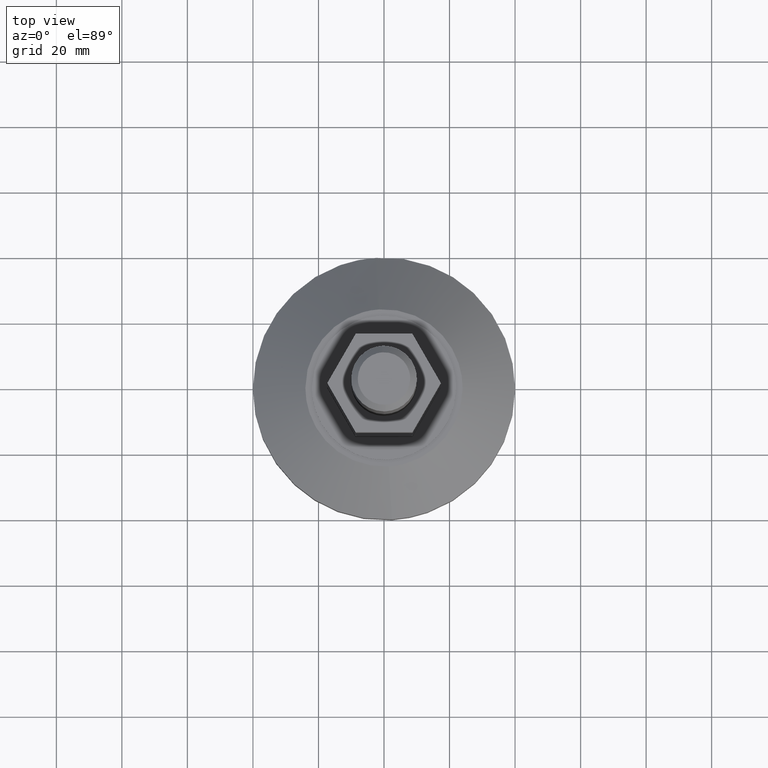
[diagram: clean part render]
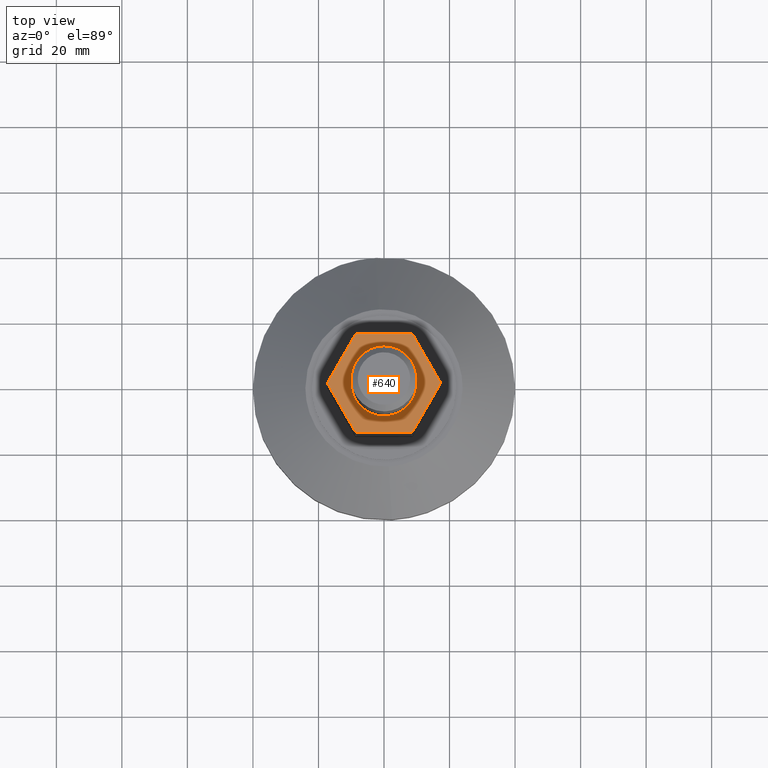
[diagram: same view with one face highlighted and labeled with its STEP entity id]
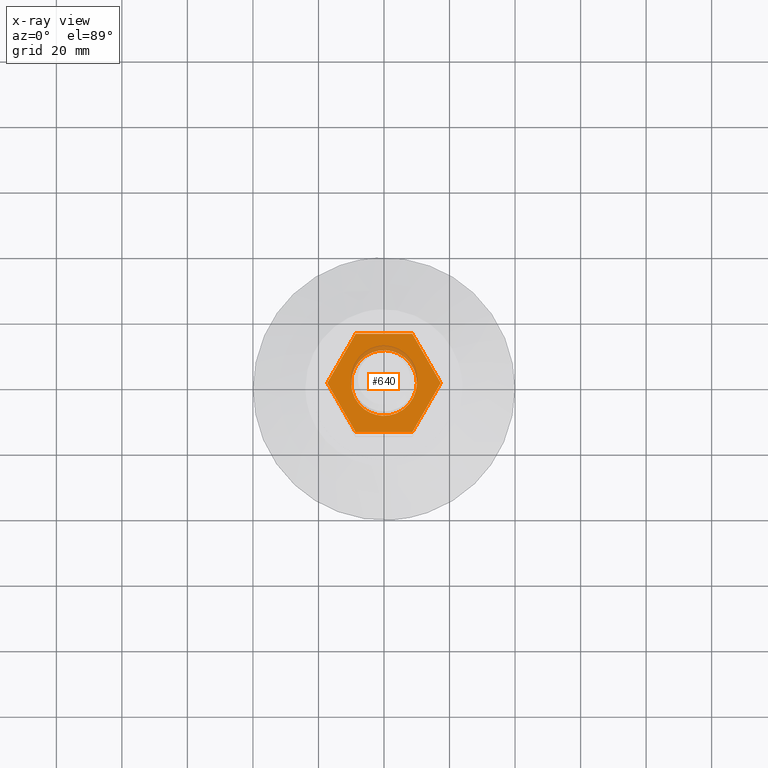
[diagram: x-ray of the same camera — body ghosted, the highlighted face saturated]
A machine part, top view. The second image highlights one B-rep face of the part: STEP entity #640.
The next image is the same camera in x-ray: the body ghosted, the highlighted face saturated — about 6% of this face is hidden behind the body in this view.
In plain terms, the highlighted face is a freeform B-spline surface patch.
Its self-contained STEP definition (entity closure, byte-faithful):
#23=CARTESIAN_POINT('',(-0.610485395395117,-9.981347984217175,112.500000000000000));
#24=VERTEX_POINT('',#23);
#25=CARTESIAN_POINT('',(10.000000000000471,-1.705303E-013,112.500000000000000));
#26=VERTEX_POINT('',#25);
#27=CARTESIAN_POINT('',(-0.610485395395116,-9.981347984217177,112.500000000000040));
#28=CARTESIAN_POINT('',(-0.305527633009561,-10.000000000001311,112.500000000000030));
#29=CARTESIAN_POINT('',(-6.679102E-013,-10.000000000001309,112.500000000000000));
#30=CARTESIAN_POINT('',(10.000000000000473,-10.000000000001309,112.500000000000000));
#31=CARTESIAN_POINT('',(10.000000000000471,-1.705303E-013,112.500000000000000));
#39=(BOUNDED_CURVE()B_SPLINE_CURVE(2,(#27,#28,#29,#30,#31),.UNSPECIFIED.,.F.,.U.)B_SPLINE_CURVE_WITH_KNOTS((3,2,3),(0.239332962241176,0.250000000000000,0.500000000000000),.UNSPECIFIED.)CURVE()GEOMETRIC_REPRESENTATION_ITEM()RATIONAL_B_SPLINE_CURVE((0.976072041671505,0.987502787902454,1.0,0.707106781186548,1.0))REPRESENTATION_ITEM(''));
#40=EDGE_CURVE('',#24,#26,#39,.T.);
#42=CARTESIAN_POINT('',(0.610485395393778,9.981347984216836,112.500000000000000));
#43=VERTEX_POINT('',#42);
#44=CARTESIAN_POINT('',(10.000000000000471,-1.705303E-013,112.500000000000000));
#45=CARTESIAN_POINT('',(10.000000000000473,9.407060669014596,112.499999999999990));
#46=CARTESIAN_POINT('',(0.610485395393780,9.981347984216836,112.500000000000040));
#54=(BOUNDED_CURVE()B_SPLINE_CURVE(2,(#44,#45,#46),.UNSPECIFIED.,.F.,.U.)B_SPLINE_CURVE_WITH_KNOTS((3,3),(0.500000000000000,0.739332962241176),.UNSPECIFIED.)CURVE()GEOMETRIC_REPRESENTATION_ITEM()RATIONAL_B_SPLINE_CURVE((1.0,0.719603993284094,0.976072041671505))REPRESENTATION_ITEM(''));
#55=EDGE_CURVE('',#26,#43,#54,.T.);
#122=CARTESIAN_POINT('',(-10.000000000001810,-1.705303E-013,112.500000000000000));
#123=VERTEX_POINT('',#122);
#124=CARTESIAN_POINT('',(-10.000000000001810,-1.705303E-013,112.500000000000000));
#125=CARTESIAN_POINT('',(-10.000000000001808,-9.407060669014935,112.499999999999990));
#126=CARTESIAN_POINT('',(-0.610485395395116,-9.981347984217177,112.500000000000040));
#134=(BOUNDED_CURVE()B_SPLINE_CURVE(2,(#124,#125,#126),.UNSPECIFIED.,.F.,.U.)B_SPLINE_CURVE_WITH_KNOTS((3,3),(0.0,0.239332962241176),.UNSPECIFIED.)CURVE()GEOMETRIC_REPRESENTATION_ITEM()RATIONAL_B_SPLINE_CURVE((1.0,0.719603993284094,0.976072041671505))REPRESENTATION_ITEM(''));
#135=EDGE_CURVE('',#123,#24,#134,.T.);
#169=CARTESIAN_POINT('',(0.610485395393780,9.981347984216836,112.500000000000040));
#170=CARTESIAN_POINT('',(0.305527633008225,10.000000000000970,112.500000000000030));
#171=CARTESIAN_POINT('',(-6.679102E-013,10.000000000000970,112.500000000000000));
#172=CARTESIAN_POINT('',(-10.000000000001810,10.000000000000970,112.500000000000000));
#173=CARTESIAN_POINT('',(-10.000000000001810,-1.705303E-013,112.500000000000000));
#181=(BOUNDED_CURVE()B_SPLINE_CURVE(2,(#169,#170,#171,#172,#173),.UNSPECIFIED.,.F.,.U.)B_SPLINE_CURVE_WITH_KNOTS((3,2,3),(0.739332962241176,0.750000000000000,1.0),.UNSPECIFIED.)CURVE()GEOMETRIC_REPRESENTATION_ITEM()RATIONAL_B_SPLINE_CURVE((0.976072041671505,0.987502787902454,1.0,0.707106781186548,1.0))REPRESENTATION_ITEM(''));
#182=EDGE_CURVE('',#43,#123,#181,.T.);
#585=CARTESIAN_POINT('',(-19.050826765309750,16.498499941854181,112.500000000000000));
#586=CARTESIAN_POINT('',(19.050827694452959,16.498499941854181,112.500000000000000));
#587=CARTESIAN_POINT('',(-19.050826765309750,-16.498500746516889,112.500000000000000));
#588=CARTESIAN_POINT('',(19.050827694452959,-16.498500746516889,112.500000000000000));
#589=B_SPLINE_SURFACE_WITH_KNOTS('',1,1,((#585,#587),(#586,#588)),.UNSPECIFIED.,.F.,.F.,.U.,(2,2),(2,2),(0.0,38.101654459762713),(0.0,32.997000688371060),.UNSPECIFIED.);
#590=CARTESIAN_POINT('',(8.660254037843810,15.0,112.500000000000000));
#591=VERTEX_POINT('',#590);
#592=CARTESIAN_POINT('',(-8.660254037845089,14.999999999999821,112.500000000000000));
#593=VERTEX_POINT('',#592);
#594=CARTESIAN_POINT('',(8.660254037843810,15.0,112.500000000000000));
#595=CARTESIAN_POINT('',(-8.660254037845089,14.999999999999821,112.500000000000000));
#596=QUASI_UNIFORM_CURVE('',1,(#594,#595),.UNSPECIFIED.,.F.,.U.);
#597=EDGE_CURVE('',#591,#593,#596,.T.);
#598=ORIENTED_EDGE('',*,*,#597,.T.);
#599=CARTESIAN_POINT('',(-17.320508075689450,-5.684342E-014,112.500000000000000));
#600=VERTEX_POINT('',#599);
#601=CARTESIAN_POINT('',(-8.660254037845089,14.999999999999821,112.500000000000000));
#602=CARTESIAN_POINT('',(-17.320508075689450,-5.684342E-014,112.500000000000000));
#603=QUASI_UNIFORM_CURVE('',1,(#601,#602),.UNSPECIFIED.,.F.,.U.);
#604=EDGE_CURVE('',#593,#600,#603,.T.);
#605=ORIENTED_EDGE('',*,*,#604,.T.);
#606=CARTESIAN_POINT('',(-8.660254037844871,-15.0,112.500000000000000));
#607=VERTEX_POINT('',#606);
#608=CARTESIAN_POINT('',(-17.320508075689450,-5.684342E-014,112.500000000000000));
#609=CARTESIAN_POINT('',(-8.660254037844871,-15.0,112.500000000000000));
#610=QUASI_UNIFORM_CURVE('',1,(#608,#609),.UNSPECIFIED.,.F.,.U.);
#611=EDGE_CURVE('',#600,#607,#610,.T.);
#612=ORIENTED_EDGE('',*,*,#611,.T.);
#613=CARTESIAN_POINT('',(8.660254037843760,-15.0,112.500000000000000));
#614=VERTEX_POINT('',#613);
#615=CARTESIAN_POINT('',(-8.660254037844871,-15.0,112.500000000000000));
#616=CARTESIAN_POINT('',(8.660254037843760,-15.0,112.500000000000000));
#617=QUASI_UNIFORM_CURVE('',1,(#615,#616),.UNSPECIFIED.,.F.,.U.);
#618=EDGE_CURVE('',#607,#614,#617,.T.);
#619=ORIENTED_EDGE('',*,*,#618,.T.);
#620=CARTESIAN_POINT('',(17.320508075688199,5.684342E-014,112.500000000000000));
#621=VERTEX_POINT('',#620);
#622=CARTESIAN_POINT('',(8.660254037843760,-15.0,112.500000000000000));
#623=CARTESIAN_POINT('',(17.320508075688199,5.684342E-014,112.500000000000000));
#624=QUASI_UNIFORM_CURVE('',1,(#622,#623),.UNSPECIFIED.,.F.,.U.);
#625=EDGE_CURVE('',#614,#621,#624,.T.);
#626=ORIENTED_EDGE('',*,*,#625,.T.);
#627=CARTESIAN_POINT('',(17.320508075688199,5.684342E-014,112.500000000000000));
#628=CARTESIAN_POINT('',(8.660254037843810,15.0,112.500000000000000));
#629=QUASI_UNIFORM_CURVE('',1,(#627,#628),.UNSPECIFIED.,.F.,.U.);
#630=EDGE_CURVE('',#621,#591,#629,.T.);
#631=ORIENTED_EDGE('',*,*,#630,.T.);
#632=EDGE_LOOP('',(#598,#605,#612,#619,#626,#631));
#633=FACE_OUTER_BOUND('',#632,.T.);
#634=ORIENTED_EDGE('',*,*,#55,.F.);
#635=ORIENTED_EDGE('',*,*,#40,.F.);
#636=ORIENTED_EDGE('',*,*,#135,.F.);
#637=ORIENTED_EDGE('',*,*,#182,.F.);
#638=EDGE_LOOP('',(#634,#635,#636,#637));
#639=FACE_BOUND('',#638,.T.);
#640=ADVANCED_FACE('',(#633,#639),#589,.F.);